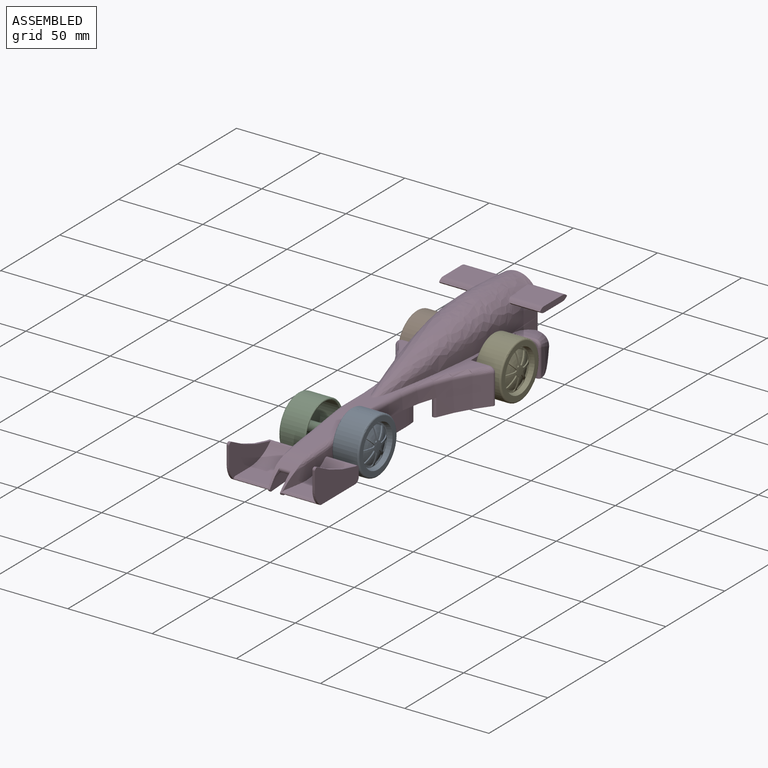
[diagram: assembled view]
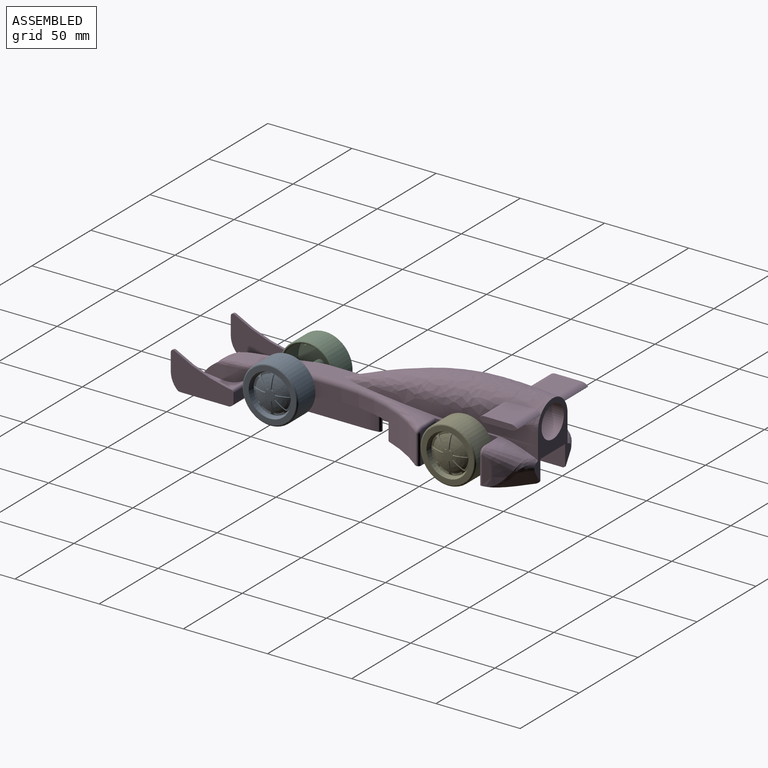
[diagram: assembled view, second angle]
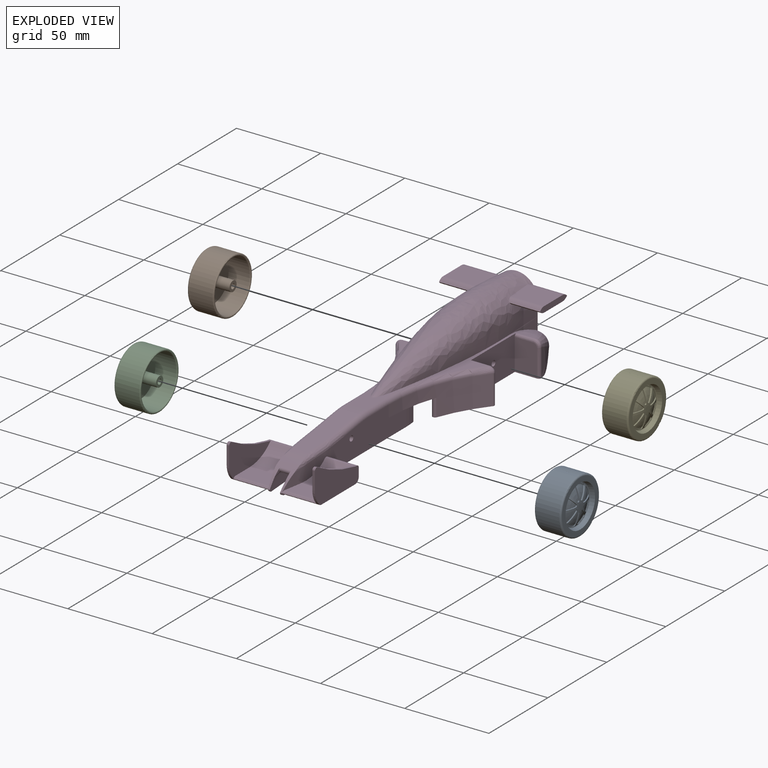
[diagram: exploded view]
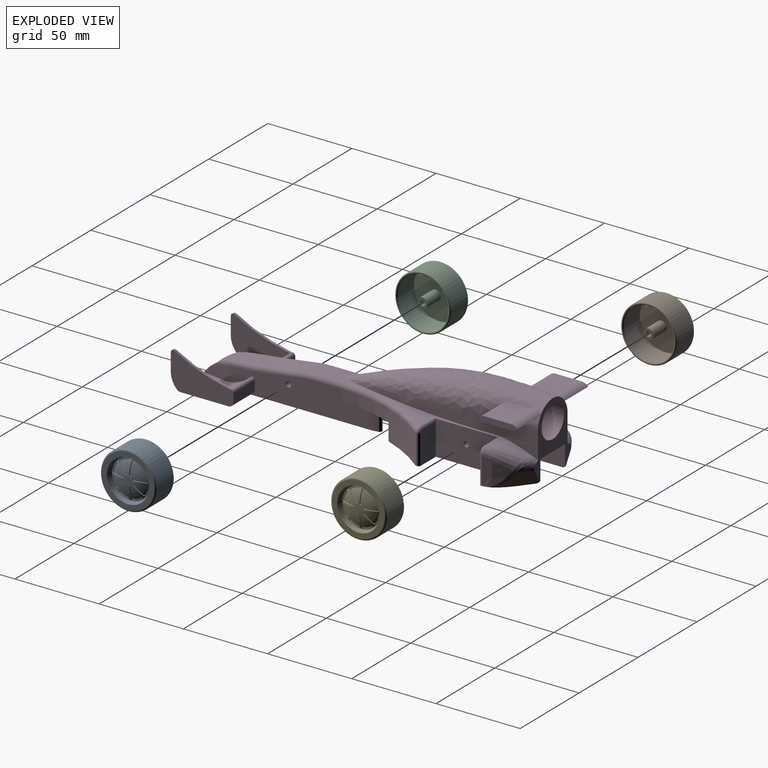
[diagram: exploded view, second angle]
ASSEMBLY  parts=5 mates=4
PART A: 90 faces, bbox 16.1x36.1x36.1 mm
  f0: cylinder r=16.5mm len=16.5mm, axis (1,0,0), area 362.7mm2, adj f1,f3,f86,f88
  f1: torus R=15.5mm, axis (1,0,0), area 159.3mm2, adj f0,f2,f7,f84,f85,f86,f87,f88
  f2: cylinder r=16.5mm len=33mm, axis (1,0,0), area 1088.4mm2, adj f1,f3,f84,f87
  f3: torus R=15.81mm, axis (1,0,0), area 215.3mm2, adj f0,f2,f8,f84,f85,f86,f87,f88
  f4: torus R=13.24mm, axis (1,0,0), area 10.3mm2, adj f7,f15
  f5: cylinder r=1.55mm len=13mm, axis (1,0,0), area 126.6mm2, adj f6,f13
  f6: cone r=1.55mm half-angle=51.1deg, axis (-1,0,0), area 9.7mm2, adj f5
  f7: plane 31x31mm, normal (1,0,0), area 203.7mm2, adj f1,f4
  f8: cylinder r=15.12mm len=30.24mm, axis (1,0,0), area 1282.5mm2, adj f3,f9
  f9: plane 30.24x30.24mm, normal (-1,0,0), area 177.4mm2, adj f8,f10
  f10: cone r=13.12mm half-angle=16.7deg, axis (1,0,0), area 249.3mm2, adj f9,f11
  f11: plane 24.44x24.44mm, normal (-1,0,0), area 439.9mm2, adj f10,f12
  f12: cylinder r=3.05mm len=11.19mm, axis (1,0,0), area 214.4mm2, adj f11,f13
  f13: plane 6.1x6.1mm, normal (-1,0,0), area 21.7mm2, adj f5,f12
  f14: plane 26.24x26.24mm, normal (1,0,0), area 49.9mm2, adj f15,f17
  f15: cylinder r=13.12mm len=26.24mm, axis (1,0,0), area 0.6mm2, adj f4,f14
  f16: plane 3x3mm, normal (1,0,0), area 7.1mm2, adj f61
  f17: cone r=12.5mm half-angle=16.7deg, axis (1,0,0), area 188.9mm2, adj f14,f18
  f18: torus R=11.31mm, axis (1,0,0), area 65.6mm2, adj f17,f24,f30,f36,f42,f48,f54,f60
  f19: cylinder r=0.75mm len=1.28mm, axis (1,0,0), area 1.3mm2, adj f20,f23,f61,f68
  f20: plane 7.03x3.12mm, normal (0,-1,0), area 4.9mm2, adj f19,f21,f61,f68
  f21: cylinder r=1mm len=1.16mm, axis (1,0,0), area 1.1mm2, adj f20,f24,f61,f68,f69
  f22: cylinder r=1mm len=1.52mm, axis (1,0,0), area 1.1mm2, adj f23,f24,f61,f68,f69
  f23: plane 5.1x5.1mm, normal (0,0.71,-0.71), area 4.9mm2, adj f19,f22,f61,f68
  f24: cylinder r=11.05mm len=4.66mm, axis (1,0,0), area 1.8mm2, adj f18,f21,f22,f69
  f25: cylinder r=1mm len=1.16mm, axis (1,0,0), area 1.1mm2, adj f26,f30,f61,f70,f71
  f26: plane 7.03x3.12mm, normal (0,0,-1), area 4.9mm2, adj f25,f27,f61,f71
  f27: cylinder r=0.75mm len=1.28mm, axis (1,0,0), area 1.3mm2, adj f26,f29,f61,f71
  f28: cylinder r=1mm len=1.52mm, axis (1,0,0), area 1.1mm2, adj f29,f30,f61,f70,f71
  f29: plane 5.1x5.1mm, normal (0,-0.71,0.71), area 4.9mm2, adj f27,f28,f61,f71
  f30: cylinder r=11.05mm len=4.66mm, axis (1,0,0), area 1.8mm2, adj f18,f25,f28,f70
  f31: plane 7.03x3.12mm, normal (0,0,1), area 4.9mm2, adj f32,f35,f61,f72
  f32: cylinder r=1mm len=1.16mm, axis (1,0,0), area 1.1mm2, adj f31,f36,f61,f72,f73
  f33: cylinder r=1mm len=1.52mm, axis (1,0,0), area 1.1mm2, adj f34,f36,f61,f72,f73
  f34: plane 5.1x5.1mm, normal (0,-0.71,-0.71), area 4.9mm2, adj f33,f35,f61,f72
  f35: cylinder r=0.75mm len=1.28mm, axis (1,0,0), area 1.3mm2, adj f31,f34,f61,f72
  f36: cylinder r=11.05mm len=4.66mm, axis (1,0,0), area 1.8mm2, adj f18,f32,f33,f73
  f37: plane 5.1x5.1mm, normal (0,0.71,0.71), area 4.9mm2, adj f38,f41,f61,f80
  f38: cylinder r=1mm len=1.52mm, axis (1,0,0), area 1.1mm2, adj f37,f42,f61,f80,f81
  f39: cylinder r=1mm len=1.16mm, axis (1,0,0), area 1.1mm2, adj f40,f42,f61,f80,f81
  f40: plane 7.03x3.12mm, normal (0,-1,0), area 4.9mm2, adj f39,f41,f61,f80
  f41: cylinder r=0.75mm len=1.28mm, axis (1,0,0), area 1.3mm2, adj f37,f40,f61,f80
  f42: cylinder r=11.05mm len=4.66mm, axis (1,0,0), area 1.8mm2, adj f18,f38,f39,f81
  f43: plane 7.03x3.12mm, normal (0,1,0), area 4.9mm2, adj f44,f47,f61,f74
  f44: cylinder r=1mm len=1.16mm, axis (1,0,0), area 1.1mm2, adj f43,f48,f61,f74,f75
  f45: cylinder r=1mm len=1.52mm, axis (1,0,0), area 1.1mm2, adj f46,f48,f61,f74,f75
  f46: plane 5.1x5.1mm, normal (0,-0.71,0.71), area 4.9mm2, adj f45,f47,f61,f74
  f47: cylinder r=0.75mm len=1.28mm, axis (1,0,0), area 1.3mm2, adj f43,f46,f61,f74
  f48: cylinder r=11.05mm len=4.66mm, axis (1,0,0), area 1.8mm2, adj f18,f44,f45,f75
  f49: plane 5.1x5.1mm, normal (0,0.71,-0.71), area 4.9mm2, adj f50,f53,f61,f76
  f50: cylinder r=1mm len=1.52mm, axis (1,0,0), area 1.1mm2, adj f49,f54,f61,f76,f77
  f51: cylinder r=1mm len=1.16mm, axis (1,0,0), area 1.1mm2, adj f52,f54,f61,f76,f77
  f52: plane 7.03x3.12mm, normal (0,0,1), area 4.9mm2, adj f51,f53,f61,f76
  f53: cylinder r=0.75mm len=1.28mm, axis (1,0,0), area 1.3mm2, adj f49,f52,f61,f76
  f54: cylinder r=11.05mm len=4.66mm, axis (1,0,0), area 1.8mm2, adj f18,f50,f51,f77
  f55: plane 7.03x3.12mm, normal (0,0,-1), area 4.9mm2, adj f56,f59,f61,f78
  f56: cylinder r=1mm len=1.16mm, axis (1,0,0), area 1.1mm2, adj f55,f60,f61,f78,f79
  f57: cylinder r=1mm len=1.52mm, axis (1,0,0), area 1.1mm2, adj f58,f60,f61,f78,f79
  f58: plane 5.1x5.1mm, normal (0,0.71,0.71), area 4.9mm2, adj f57,f59,f61,f78
  f59: cylinder r=0.75mm len=1.28mm, axis (1,0,0), area 1.3mm2, adj f55,f58,f61,f78
  f60: cylinder r=11.05mm len=4.66mm, axis (1,0,0), area 1.8mm2, adj f18,f56,f57,f79
  f61: torus R=1.5mm, axis (1,0,0), area 131.6mm2, adj f16,f18,f19,f20,f21,f22,f23,f25
  f62: plane 5.1x5.1mm, normal (0,-0.71,-0.71), area 4.9mm2, adj f61,f63,f66,f82
  f63: cylinder r=1mm len=1.52mm, axis (1,0,0), area 1.1mm2, adj f61,f62,f67,f82,f83
  f64: cylinder r=1mm len=1.16mm, axis (1,0,0), area 1.1mm2, adj f61,f65,f67,f82,f83
  f65: plane 7.03x3.12mm, normal (0,1,0), area 4.9mm2, adj f61,f64,f66,f82
  f66: cylinder r=0.75mm len=1.28mm, axis (1,0,0), area 1.3mm2, adj f61,f62,f65,f82
  f67: cylinder r=11.05mm len=4.66mm, axis (1,0,0), area 1.8mm2, adj f18,f63,f64,f83
  f68: torus R=1.5mm, axis (1,0,0), area 29.3mm2, adj f19,f20,f21,f22,f23,f69
  f69: plane 6.16x3.12mm, normal (1,0,0), area 4.5mm2, adj f21,f22,f24,f68
  f70: plane 6.16x3.12mm, normal (1,0,0), area 4.5mm2, adj f25,f28,f30,f71
  f71: torus R=1.5mm, axis (1,0,0), area 29.3mm2, adj f25,f26,f27,f28,f29,f70
  f72: torus R=1.5mm, axis (1,0,0), area 29.3mm2, adj f31,f32,f33,f34,f35,f73
  f73: plane 6.16x3.12mm, normal (1,0,0), area 4.5mm2, adj f32,f33,f36,f72
  f74: torus R=1.5mm, axis (1,0,0), area 29.3mm2, adj f43,f44,f45,f46,f47,f75
  f75: plane 6.16x3.12mm, normal (1,0,0), area 4.5mm2, adj f44,f45,f48,f74
  f76: torus R=1.5mm, axis (1,0,0), area 29.3mm2, adj f49,f50,f51,f52,f53,f77
  f77: plane 6.16x3.12mm, normal (1,0,0), area 4.5mm2, adj f50,f51,f54,f76
  f78: torus R=1.5mm, axis (1,0,0), area 29.3mm2, adj f55,f56,f57,f58,f59,f79
  f79: plane 6.16x3.12mm, normal (1,0,0), area 4.5mm2, adj f56,f57,f60,f78
  f80: torus R=1.5mm, axis (1,0,0), area 29.3mm2, adj f37,f38,f39,f40,f41,f81
  f81: plane 6.16x3.12mm, normal (1,0,0), area 4.5mm2, adj f38,f39,f42,f80
  f82: torus R=1.5mm, axis (1,0,0), area 29.3mm2, adj f62,f63,f64,f65,f66,f83
  f83: plane 6.16x3.12mm, normal (1,0,0), area 4.5mm2, adj f63,f64,f67,f82
  f84: plane 14.18x0.01mm, normal (0,1,0), area 0.1mm2, adj f1,f2,f3,f85
  f85: plane 14.18x0.01mm, normal (0,0,1), area 0.1mm2, adj f1,f3,f84,f86
  f86: plane 14.18x0.01mm, normal (0,-1,0), area 0.1mm2, adj f0,f1,f3,f85
  f87: plane 14.18x0.01mm, normal (0,0,1), area 0.1mm2, adj f1,f2,f3,f89
  f88: plane 14.18x0.01mm, normal (0,0,-1), area 0.1mm2, adj f0,f1,f3,f89
  f89: plane 14.18x0.01mm, normal (0,1,0), area 0.1mm2, adj f1,f3,f87,f88
PART B: same geometry as A
PART C: same geometry as A
PART D: 207 faces, bbox 63.7x215x54 mm
  f0: plane 110.83x51.52mm, normal (0,0,1), area 616.1mm2, adj f40,f41,f43,f52,f55,f56,f76,f77
  f1: cylinder r=98mm len=31.84mm, axis (-1,0,0), area 51.1mm2, adj f6,f143,f153,f202
  f2: cylinder r=98mm len=31.84mm, axis (1,0,0), area 51.1mm2, adj f3,f4,f144,f203
  f3: plane 37.21x21.5mm, normal (1,0,0), area 519.4mm2, adj f2,f34,f105,f106,f144,f145,f146,f147
  f4: plane 35.82x20.51mm, normal (-1,0,0), area 399.5mm2, adj f2,f30,f31,f32,f144,f145,f146,f147
  f5: cylinder r=166.39mm len=36.26mm, axis (0,0,1), area 262.1mm2, adj f30,f31,f32,f34,f39,f71,f81,f82
  f6: plane 35.82x20.51mm, normal (1,0,0), area 399.6mm2, adj f1,f27,f28,f29,f149,f150,f151,f152
  f7: cylinder r=166.39mm len=36.26mm, axis (0,0,1), area 262.1mm2, adj f25,f27,f28,f29,f33,f39,f70,f88
  f8: plane 89.03x21.28mm, normal (0,0,-1), area 751mm2, adj f9,f13,f14,f23,f41,f96,f102,f135
  f9: plane 75.6x13.33mm, normal (1,0,0), area 745mm2, adj f8,f15,f26,f59,f67,f68,f69,f156
  f10: plane 75.6x13.33mm, normal (-1,0,0), area 745mm2, adj f11,f15,f26,f54,f59,f67,f68,f69
  f11: plane 87.91x20.17mm, normal (0,0,-1), area 751mm2, adj f10,f12,f24,f43,f91,f97,f99,f137
  f12: bspline ~18.38x16.51mm, area 135.8mm2, adj f11,f15,f181,f185,f186,f187,f188
  f13: bspline ~18.38x16.51mm, area 133.2mm2, adj f8,f15,f180,f189,f190,f191
  f14: plane 18.87x13.21mm, normal (0,-1,0), area 247.2mm2, adj f8,f41,f94,f95,f179
  f15: plane 40.05x31.43mm, normal (0,1,0), area 435.5mm2, adj f9,f10,f12,f13,f40,f49,f50,f72
  f16: plane 84.12x10.65mm, normal (-1,0,0), area 709.2mm2, adj f141,f163,f165,f166,f167,f168,f169,f176
  f17: extruded ~16.96x2.19mm, area 39.9mm2, adj f21,f26,f170,f175
  f18: extruded ~16.96x2.19mm, area 39.9mm2, adj f26,f62,f165,f176
  f19: cylinder r=1.6mm len=16mm, axis (-1,0,0), area 160.8mm2, adj f70,f71
  f20: bspline ~40x10mm, area 550.7mm2, adj f22,f39,f65,f66,f119,f120,f124,f125
  f21: bspline ~3.98x2.83mm, area 3.9mm2, adj f17,f60,f61,f64,f171
  f22: bspline ~3.98x2.9mm, area 3.3mm2, adj f20,f60,f64,f66,f174
  f23: cylinder r=92.82mm len=58.55mm, axis (0,0,1), area 759.9mm2, adj f8,f26,f70,f83,f102,f155
  f24: cylinder r=92.82mm len=58.55mm, axis (0,0,1), area 759.9mm2, adj f11,f26,f71,f76,f99,f159
  f25: plane 106.36x4.93mm, normal (0,0,-1), area 340.7mm2, adj f7,f70,f142,f160,f161,f162,f172,f195
  f26: plane 72.64x27.77mm, normal (0,0,-1), area 992.5mm2, adj f9,f10,f17,f18,f23,f24,f54,f61
  f27: plane 20.69x0.35mm, normal (0,-0.71,0.71), area 10.3mm2, adj f6,f7,f28,f108
  f28: cylinder r=2.21mm len=20.61mm, axis (-1,0,0), area 35.4mm2, adj f6,f7,f27,f29
  f29: plane 20.28x12.17mm, normal (0,0,1), area 233mm2, adj f6,f7,f28,f197
  f30: plane 20.28x12.17mm, normal (0,0,1), area 233mm2, adj f4,f5,f31,f196
  f31: cylinder r=2.21mm len=20.61mm, axis (1,0,0), area 35.4mm2, adj f4,f5,f30,f32
  f32: plane 20.69x0.35mm, normal (0,-0.71,0.71), area 10.3mm2, adj f4,f5,f31,f105
  f33: plane 28.8x21.77mm, normal (0,0,-1), area 564.5mm2, adj f7,f107,f143,f205
  f34: plane 28.8x21.77mm, normal (0,0,-1), area 564.5mm2, adj f3,f5,f106,f204
  f35: plane 23x3.5mm, normal (-1,0,0), area 72.4mm2, adj f36,f109,f110,f111,f112,f113,f131,f132
  f36: plane 20.94x15.55mm, normal (0,0,1), area 315.5mm2, adj f35,f40,f109,f131
  f37: plane 23x3.5mm, normal (1,0,0), area 72.4mm2, adj f38,f114,f115,f116,f117,f118,f127,f128
  f38: plane 18.6x15.65mm, normal (0,0,-1), area 280.4mm2, adj f37,f40,f116,f128
  f39: cylinder r=32.34mm len=21.75mm, axis (-1,0,0), area 205.7mm2, adj f5,f7,f20,f53,f82,f89,f119,f120
  f40: bspline ~135x31.11mm, area 5379.6mm2, adj f0,f15,f36,f38,f72,f73,f109,f110
  f41: plane 37.51x20.5mm, normal (-1,0,0), area 727.9mm2, adj f0,f8,f14,f42,f55,f94,f96,f98
  f42: plane 3.21x1.55mm, normal (-1,0,0), area 3mm2, adj f41,f55,f94
  f43: plane 37.51x20.5mm, normal (1,0,0), area 727.9mm2, adj f0,f11,f56,f90,f91,f92,f97,f98
  f44: bspline ~25x15mm, area 90.4mm2, adj f48,f55,f94
  f45: bspline ~25x20mm, area 145.7mm2, adj f47,f93,f137,f188
  f46: bspline ~25x15mm, area 90.3mm2, adj f47,f56,f92
  f47: bspline ~26.4x18.09mm, area 156.5mm2, adj f45,f46,f57,f92,f187
  f48: bspline ~19.24x14.69mm, area 156.5mm2, adj f44,f58,f94,f177,f190
  f49: extruded ~25x7.89mm, area 9.1mm2, adj f15,f56,f72,f185
  f50: extruded ~25x7.89mm, area 9mm2, adj f15,f55,f73,f189
  f51: plane 12.97x10mm, normal (0,-0.14,0.99), area 131mm2, adj f52,f53,f79,f86
  f52: cylinder r=60mm len=10mm, axis (1,0,0), area 85.1mm2, adj f0,f51,f78,f85
  f53: bspline ~24.13x10.01mm, area 237.3mm2, adj f39,f51,f80,f81,f87,f88
  f54: cylinder r=30mm len=10mm, axis (0,0,-1), area 0.4mm2, adj f10,f26,f139,f158
  f55: extruded ~23.09x6.64mm, area 43.4mm2, adj f0,f41,f42,f44,f50,f58,f189
  f56: extruded ~23.05x6.62mm, area 43.5mm2, adj f0,f43,f46,f49,f57,f90,f185
  f57: bspline ~9.3x9.24mm, area 0.2mm2, adj f47,f56,f186
  f58: bspline ~9.3x9.24mm, area 0.2mm2, adj f48,f55,f189
  f59: plane 21x9.46mm, normal (0,0,-1), area 198.7mm2, adj f9,f10,f68,f183
  f60: cylinder r=41.85mm len=29.2mm, axis (-1,0,0), area 174.6mm2, adj f21,f22,f61,f62,f63,f64,f65,f66
  f61: cylinder r=2mm len=4.02mm, axis (-1,0,0), area 2.9mm2, adj f21,f26,f60,f62
  f62: bspline ~2.99x2.8mm, area 3.9mm2, adj f18,f60,f61,f63,f166
  f63: torus R=43.85mm, axis (1,0,0), area 26.6mm2, adj f60,f62,f65,f168
  f64: torus R=43.85mm, axis (-1,0,0), area 26mm2, adj f21,f22,f60,f173
  f65: bspline ~3.98x2.89mm, area 3.5mm2, adj f20,f60,f63,f66,f169
  f66: cylinder r=2mm len=4.02mm, axis (-1,0,0), area 2.1mm2, adj f20,f22,f60,f65
  f67: cylinder r=41.85mm len=21.53mm, axis (-1,0,0), area 457.4mm2, adj f9,f10,f68,f69
  f68: cylinder r=40mm len=21mm, axis (-1,0,0), area 218.6mm2, adj f9,f10,f59,f67
  f69: cylinder r=40mm len=21mm, axis (-1,0,0), area 218.6mm2, adj f9,f10,f26,f67
  f70: plane 64.05x17.5mm, normal (-1,0,0), area 946mm2, adj f7,f19,f23,f25,f26,f84,f85,f86
  f71: plane 64.05x17.5mm, normal (1,0,0), area 946mm2, adj f5,f19,f24,f26,f77,f78,f79,f80
  f72: extruded ~25x7.66mm, area 62.8mm2, adj f15,f40,f49
  f73: extruded ~25x7.66mm, area 62.8mm2, adj f15,f40,f50,f206
  f74: cylinder r=9.5mm len=52mm, axis (0,1,0), area 3103.9mm2, adj f15,f75
  f75: plane 19x19mm, normal (0,1,0), area 283.5mm2, adj f74
  f76: torus R=95.82mm, axis (0,0,1), area 299.3mm2, adj f0,f24,f77,f100
  f77: cylinder r=3mm len=15.74mm, axis (0,1,0), area 74.2mm2, adj f0,f71,f76,f78
  f78: torus R=57mm, axis (-1,0,0), area 39.4mm2, adj f52,f71,f77,f79
  f79: cylinder r=3mm len=13.4mm, axis (0,0.99,0.14), area 61.8mm2, adj f51,f71,f78,f80
  f80: bspline ~60.05x10.76mm, area 56.6mm2, adj f53,f71,f79,f81
  f81: bspline ~38.04x6.94mm, area 58.7mm2, adj f5,f53,f80,f82
  f82: bspline ~20.28x6.19mm, area 40.5mm2, adj f5,f39,f81
  f83: torus R=95.82mm, axis (0,0,1), area 299.3mm2, adj f0,f23,f84,f103
  f84: cylinder r=3mm len=15.74mm, axis (0,-1,0), area 74.2mm2, adj f0,f70,f83,f85
  f85: torus R=57mm, axis (-1,0,0), area 39.4mm2, adj f52,f70,f84,f86
  f86: cylinder r=3mm len=13.4mm, axis (0,-0.99,-0.14), area 61.7mm2, adj f51,f70,f85,f87
  f87: bspline ~42.12x9.17mm, area 56.7mm2, adj f53,f70,f86,f88
  f88: bspline ~28.63x6.22mm, area 58.7mm2, adj f7,f53,f87,f89
  f89: bspline ~15.82x5.64mm, area 37.4mm2, adj f7,f39,f88
  f90: plane 3.22x1.56mm, normal (1,0,0), area 3mm2, adj f43,f56,f92
  f91: plane 18.87x13.21mm, normal (0,-1,0), area 247.2mm2, adj f11,f43,f92,f93,f138
  f92: bspline ~18.2x4.17mm, area 38.8mm2, adj f43,f46,f47,f90,f91,f93
  f93: bspline ~26.23x1.77mm, area 41.7mm2, adj f45,f91,f92,f138
  f94: bspline ~19.2x4.15mm, area 39.3mm2, adj f14,f41,f42,f44,f48,f95
  f95: bspline ~27.22x1.77mm, area 41.7mm2, adj f14,f94,f135,f136,f177,f179
  f96: plane 19x12.64mm, normal (0,1,0), area 239.5mm2, adj f8,f41,f102,f103,f104
  f97: plane 19x12.64mm, normal (0,1,0), area 239.5mm2, adj f11,f43,f99,f100,f101
  f98: cylinder r=1.6mm len=30mm, axis (1,0,0), area 301.6mm2, adj f41,f43
  f99: cylinder r=1.5mm len=17.5mm, axis (0,0,1), area 59.2mm2, adj f11,f24,f97,f100
  f100: bspline ~5.26x3.92mm, area 13.1mm2, adj f76,f97,f99,f101
  f101: cylinder r=1.5mm len=10.71mm, axis (1,0,0), area 25.2mm2, adj f0,f43,f97,f100
  f102: cylinder r=1.5mm len=17.5mm, axis (0,0,1), area 59.2mm2, adj f8,f23,f96,f103
  f103: bspline ~5.26x3.92mm, area 13.1mm2, adj f83,f96,f102,f104
  f104: cylinder r=1.5mm len=10.71mm, axis (1,0,0), area 25.2mm2, adj f0,f41,f96,f103
  f105: plane 22.19x0.35mm, normal (0,-0.71,-0.71), area 11.1mm2, adj f3,f5,f32,f106,f148
  f106: cylinder r=2.21mm len=22.11mm, axis (1,0,0), area 38mm2, adj f3,f5,f34,f105
  f107: cylinder r=2.21mm len=22.11mm, axis (-1,0,0), area 38mm2, adj f7,f33,f108,f143
  f108: plane 22.19x0.35mm, normal (0,-0.71,-0.71), area 11.1mm2, adj f7,f27,f107,f143,f149
  f109: cylinder r=5.37mm len=20.94mm, axis (-1,0,0), area 86.2mm2, adj f35,f36,f40,f110
  f110: plane 19.93x0.18mm, normal (0,0.71,0.71), area 5mm2, adj f35,f40,f109,f111
  f111: plane 19.82x0.18mm, normal (0,0.71,-0.71), area 4.9mm2, adj f35,f40,f110,f112
  f112: cylinder r=5.37mm len=19.68mm, axis (-1,0,0), area 80.5mm2, adj f35,f40,f111,f113
  f113: plane 18.6x15.65mm, normal (0,0,-1), area 280.4mm2, adj f35,f40,f112,f134
  f114: plane 19.82x0.18mm, normal (0,0.71,-0.71), area 4.9mm2, adj f37,f40,f115,f116
  f115: plane 19.93x0.18mm, normal (0,0.71,0.71), area 5mm2, adj f37,f40,f114,f118
  f116: cylinder r=5.37mm len=19.68mm, axis (1,0,0), area 80.5mm2, adj f37,f38,f40,f114
  f117: plane 20.94x15.55mm, normal (0,0,1), area 315.5mm2, adj f37,f40,f118,f127
  f118: cylinder r=5.37mm len=20.94mm, axis (1,0,0), area 86.2mm2, adj f37,f40,f115,f117
  f119: plane 2.31x1.94mm, normal (0,-0.77,0.64), area 3.4mm2, adj f5,f20,f39,f194
  f120: plane 2.31x1.94mm, normal (0,-0.77,0.64), area 3.4mm2, adj f7,f20,f39,f195
  f121: cylinder r=1.5mm len=6.6mm, axis (1,0,0), area 15mm2, adj f39,f122,f123,f126
  f122: plane 4.32x3.38mm, normal (1,0,0), area 4.2mm2, adj f39,f121,f125,f126
  f123: plane 4.32x3.38mm, normal (-1,0,0), area 4.2mm2, adj f39,f121,f124,f126
  f124: bspline ~6.52x1.51mm, area 1.3mm2, adj f20,f39,f123,f126
  f125: bspline ~6.52x1.51mm, area 1.3mm2, adj f20,f39,f122,f126
  f126: bspline ~7.6x1.76mm, area 4.2mm2, adj f20,f121,f122,f123,f124,f125
  f127: cylinder r=4.16mm len=19.75mm, axis (1,0,0), area 62.9mm2, adj f37,f40,f117,f130
  f128: cylinder r=4.16mm len=18.08mm, axis (1,0,0), area 58.4mm2, adj f37,f38,f40,f129
  f129: plane 18.36x0.53mm, normal (0,-0.71,-0.71), area 13.7mm2, adj f37,f40,f128,f130
  f130: plane 18.71x0.53mm, normal (0,-0.71,0.71), area 13.9mm2, adj f37,f40,f127,f129
  f131: cylinder r=4.16mm len=19.75mm, axis (-1,0,0), area 62.9mm2, adj f35,f36,f40,f132
  f132: plane 18.71x0.53mm, normal (0,-0.71,0.71), area 13.9mm2, adj f35,f40,f131,f133
  f133: plane 18.36x0.53mm, normal (0,-0.71,-0.71), area 13.7mm2, adj f35,f40,f132,f134
  f134: cylinder r=4.16mm len=18.08mm, axis (-1,0,0), area 58.4mm2, adj f35,f40,f113,f133
  f135: cylinder r=1.5mm len=0.5mm, axis (0,0,1), area 0.2mm2, adj f8,f95,f136,f179
  f136: extruded ~0.5x0.04mm, area 0mm2, adj f8,f95,f135,f178
  f137: extruded ~4.69x1.19mm, area 2.1mm2, adj f11,f45,f138,f188
  f138: extruded ~1.74x1.5mm, area 1.3mm2, adj f11,f91,f93,f137
  f139: extruded ~0.5x0.04mm, area 0mm2, adj f10,f11,f54,f158
  f140: extruded ~21.8x1.46mm, area 11mm2, adj f20,f141,f167,f193,f194
  f141: plane 106.42x4.96mm, normal (0,0,-1), area 340.6mm2, adj f5,f16,f71,f140,f163,f164,f167,f194
  f142: extruded ~21.8x1.46mm, area 11mm2, adj f20,f25,f172,f192,f195
  f143: plane 37.21x21.5mm, normal (-1,0,0), area 519.4mm2, adj f1,f33,f107,f108,f149,f150,f151,f152
  f144: cylinder r=1.5mm len=2.25mm, axis (1,0,0), area 4.7mm2, adj f2,f3,f4,f145
  f145: plane 10.5x1.5mm, normal (0,-1,0), area 15.8mm2, adj f3,f4,f144,f146
  f146: cylinder r=11.54mm len=4.76mm, axis (1,0,0), area 7.4mm2, adj f3,f4,f145,f147
  f147: plane 1.5x0.49mm, normal (0,-0.91,-0.41), area 0.8mm2, adj f3,f4,f146,f148
  f148: cylinder r=11.05mm len=3.25mm, axis (1,0,0), area 6mm2, adj f3,f4,f105,f147
  f149: cylinder r=11.05mm len=3.25mm, axis (-1,0,0), area 6mm2, adj f6,f108,f143,f150
  f150: plane 1.5x0.49mm, normal (0,-0.91,-0.41), area 0.8mm2, adj f6,f143,f149,f151
  f151: cylinder r=11.54mm len=4.76mm, axis (-1,0,0), area 7.4mm2, adj f6,f143,f150,f152
  f152: plane 10.5x1.5mm, normal (0,-1,0), area 15.8mm2, adj f6,f143,f151,f153
  f153: cylinder r=1.5mm len=2.25mm, axis (-1,0,0), area 4.7mm2, adj f1,f6,f143,f152
  f154: cylinder r=136.18mm len=11.45mm, axis (0,0,-1), area 120.4mm2, adj f8,f26,f155,f156,f157
  f155: cylinder r=1.5mm len=10.5mm, axis (0,0,-1), area 42.5mm2, adj f8,f23,f26,f154
  f156: extruded ~0.5x0.04mm, area 0mm2, adj f8,f9,f154,f157
  f157: cylinder r=30mm len=10mm, axis (0,0,-1), area 0.4mm2, adj f9,f26,f154,f156
  f158: cylinder r=136.18mm len=11.45mm, axis (0,0,-1), area 120.4mm2, adj f11,f26,f54,f139,f159
  f159: cylinder r=1.5mm len=10.5mm, axis (0,0,-1), area 42.5mm2, adj f11,f24,f26,f158
  f160: plane 84.11x10.64mm, normal (1,0,0), area 709.5mm2, adj f25,f161,f170,f171,f172,f173,f174,f175
  f161: cylinder r=1.5mm len=10.5mm, axis (0,0,-1), area 46.9mm2, adj f25,f26,f160,f162
  f162: cylinder r=37.75mm len=10.5mm, axis (0,0,-1), area 65.9mm2, adj f25,f26,f70,f161
  f163: cylinder r=1.5mm len=10.5mm, axis (0,0,-1), area 46.9mm2, adj f16,f26,f141,f164
  f164: cylinder r=37.75mm len=10.5mm, axis (0,0,-1), area 65.9mm2, adj f26,f71,f141,f163
  f165: cylinder r=1mm len=16.96mm, axis (0,-1,0), area 13.5mm2, adj f16,f18,f166,f176
  f166: bspline ~1.97x1.13mm, area 1.8mm2, adj f16,f62,f165,f168
  f167: bspline ~16.82x9.65mm, area 11.2mm2, adj f16,f20,f140,f141,f169
  f168: torus R=42.98mm, axis (1,0,0), area 27mm2, adj f16,f63,f166,f169
  f169: bspline ~2.59x1.31mm, area 1.7mm2, adj f16,f20,f65,f167,f168
  f170: cylinder r=1mm len=16.96mm, axis (0,-1,0), area 13.5mm2, adj f17,f160,f171,f175
  f171: bspline ~1.97x1.13mm, area 1.8mm2, adj f21,f160,f170,f173
  f172: bspline ~17.16x11.66mm, area 11.2mm2, adj f20,f25,f142,f160,f174
  f173: torus R=42.98mm, axis (1,0,0), area 27mm2, adj f64,f160,f171,f174
  f174: bspline ~2.65x1.31mm, area 1.7mm2, adj f20,f22,f160,f172,f173
  f175: bspline ~21.32x2.49mm, area 42.7mm2, adj f17,f26,f160,f170
  f176: bspline ~21.32x2.49mm, area 42.7mm2, adj f16,f18,f26,f165
  f177: bspline ~25x20mm, area 145.7mm2, adj f48,f95,f178,f191
  f178: extruded ~4.69x1.19mm, area 2.1mm2, adj f8,f136,f177,f191
  f179: extruded ~1.48x1.26mm, area 1.1mm2, adj f8,f14,f95,f135
  f180: cylinder r=1.5mm len=2.04mm, axis (-1,0,0), area 2.5mm2, adj f8,f9,f13,f15
  f181: cylinder r=1.5mm len=2.04mm, axis (-1,0,0), area 2.5mm2, adj f10,f11,f12,f15
  f182: plane 21x7.25mm, normal (0,0.2,-0.98), area 155.4mm2, adj f9,f10,f183,f184
  f183: cylinder r=20mm len=21mm, axis (1,0,0), area 82.9mm2, adj f9,f10,f59,f182
  f184: cylinder r=1mm len=21mm, axis (-1,0,0), area 28.8mm2, adj f9,f10,f15,f182
  f185: bspline ~12.71x9.9mm, area 20.2mm2, adj f12,f15,f49,f56,f186
  f186: bspline ~6.31x4.05mm, area 6.6mm2, adj f12,f57,f185,f187
  f187: bspline ~9.22x7.11mm, area 39.1mm2, adj f12,f47,f186,f188
  f188: bspline ~11.99x10.01mm, area 24.5mm2, adj f11,f12,f45,f137,f187
  f189: bspline ~7.15x6.59mm, area 26.8mm2, adj f13,f15,f50,f55,f58,f190
  f190: bspline ~8.55x6.7mm, area 39.1mm2, adj f13,f48,f189,f191
  f191: bspline ~11.99x10.01mm, area 24.5mm2, adj f8,f13,f177,f178,f190
  f192: extruded ~0.12x0.12mm, area 0mm2, adj f20,f142,f195
  f193: extruded ~0.12x0.12mm, area 0mm2, adj f20,f140,f194
  f194: cylinder r=1.5mm len=1.5mm, axis (1,0,0), area 2.6mm2, adj f5,f20,f119,f140,f141,f193
  f195: cylinder r=1.5mm len=1.5mm, axis (1,0,0), area 2.6mm2, adj f7,f20,f25,f120,f142,f192
  f196: cylinder r=24.89mm len=18.17mm, axis (1,0,0), area 328mm2, adj f4,f5,f30,f200
  f197: cylinder r=24.89mm len=18.17mm, axis (-1,0,0), area 328mm2, adj f6,f7,f29,f201
  f198: plane 18.21x4.87mm, normal (0,1,0), area 88.7mm2, adj f7,f143,f201,f205
  f199: plane 18.21x4.87mm, normal (0,1,0), area 88.7mm2, adj f3,f5,f200,f204
  f200: cylinder r=1.5mm len=18.27mm, axis (1,0,0), area 62.1mm2, adj f3,f4,f5,f196,f199,f203
  f201: cylinder r=1.5mm len=18.27mm, axis (-1,0,0), area 62.1mm2, adj f6,f7,f143,f197,f198,f202
  f202: cylinder r=15mm len=1.72mm, axis (1,0,0), area 2.6mm2, adj f1,f6,f143,f201
  f203: cylinder r=15mm len=1.72mm, axis (-1,0,0), area 2.6mm2, adj f2,f3,f4,f200
  f204: cylinder r=3mm len=18.28mm, axis (1,0,0), area 86mm2, adj f3,f5,f34,f199
  f205: cylinder r=3mm len=18.28mm, axis (1,0,0), area 86mm2, adj f7,f33,f143,f198
  f206: bspline ~135x15.55mm, area 1.6mm2, adj f0,f40,f73
PART E: same geometry as A
PLACE A t=(-9.3,-95.25,-54.54)mm
PLACE B rot(axis=(0,1,0),180deg) t=(-63.68,15.25,-54.54)mm
PLACE C rot(axis=(0,1,0),180deg) t=(-56.68,-95.25,-54.54)mm
PLACE D t=(-32.99,56.25,-37.04)mm
PLACE E t=(-2.3,15.25,-54.54)mm
MATE fastened C.f0 <-> D.f19  axis (1,0,0) through (-40.99,-95.25,-54.54)mm
MATE fastened E.f0 <-> D.f98  axis (-1,0,0) through (-17.99,15.25,-54.54)mm
MATE fastened A.f0 <-> D.f19  axis (-1,0,0) through (-24.99,-95.25,-54.54)mm
MATE fastened B.f0 <-> D.f98  axis (1,0,0) through (-47.99,15.25,-54.54)mm
